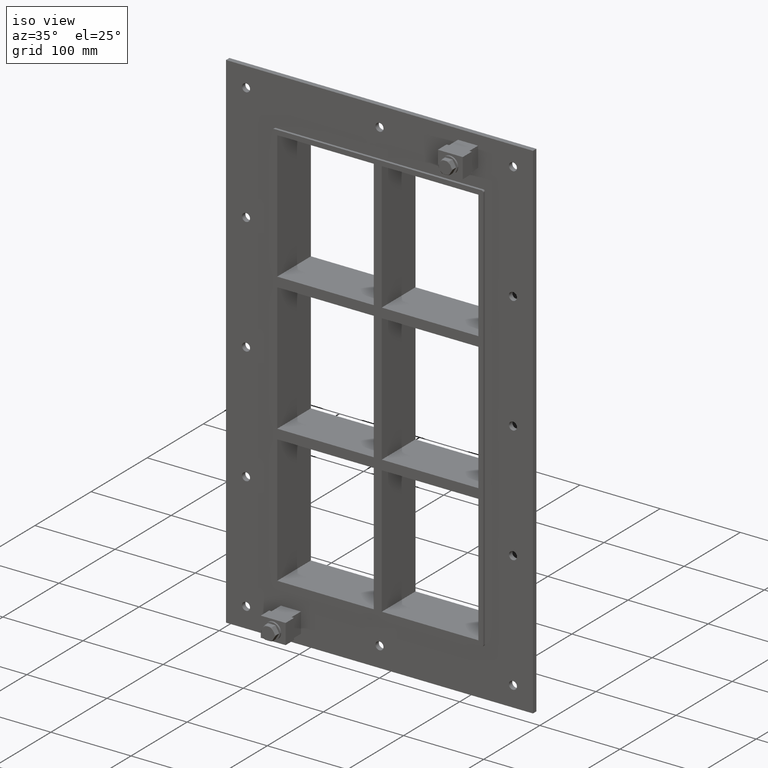
[diagram: clean part render]
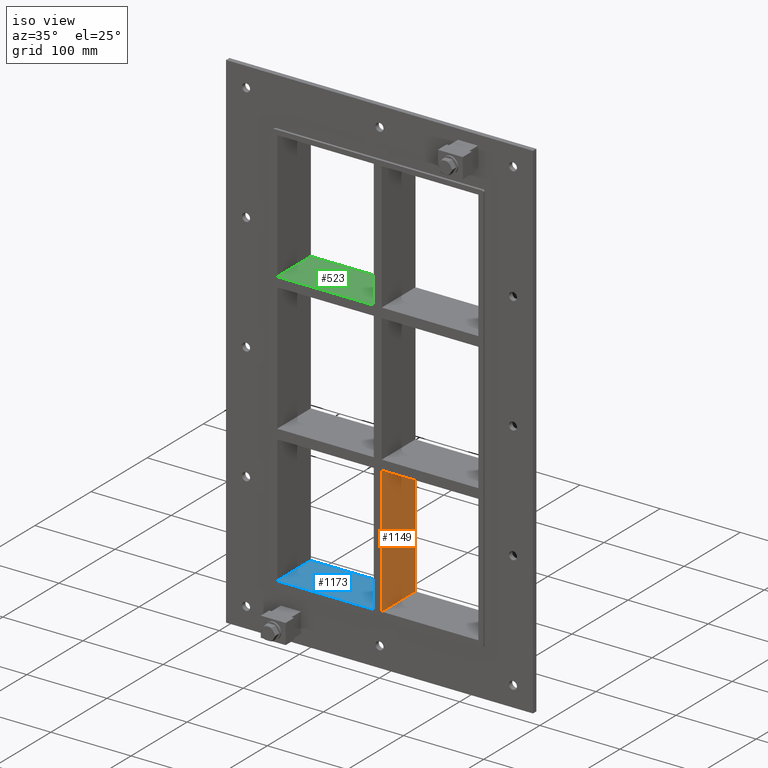
[diagram: same view with three faces highlighted in distinct colors, each labeled with its STEP entity id]
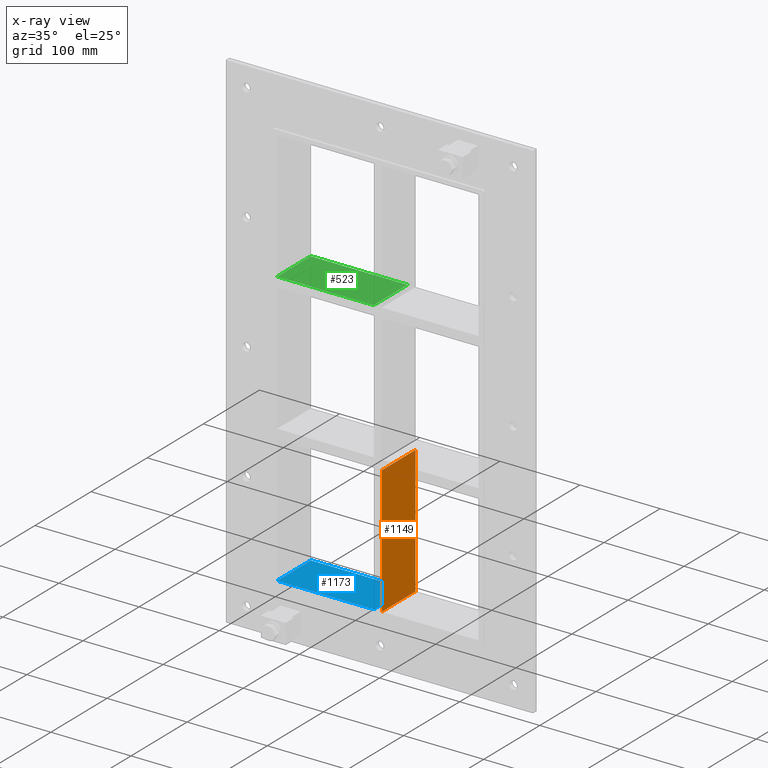
[diagram: x-ray of the same camera — body ghosted, the three highlighted faces saturated]
A machine part, iso view with three faces highlighted in distinct colors.
The next image is the same camera in x-ray (body ghosted, the three faces saturated) — at least one of them is partly hidden behind the body in this view.
Their STEP definitions:

[orange] entity #1149 — the highlighted planar face has unit normal (1, 0, 0).
#755=CARTESIAN_POINT('',(5.0,57.0,-91.750000000010914));
#756=VERTEX_POINT('',#755);
#757=CARTESIAN_POINT('',(5.0,-3.0,-91.750000000010914));
#758=VERTEX_POINT('',#757);
#759=CARTESIAN_POINT('',(5.0,57.0,-91.750000000010914));
#760=DIRECTION('',(0.0,-1.0,0.0));
#761=VECTOR('',#760,60.0);
#762=LINE('',#759,#761);
#763=EDGE_CURVE('',#756,#758,#762,.T.);
#1067=CARTESIAN_POINT('',(5.0,57.0,-251.24999999998167));
#1068=VERTEX_POINT('',#1067);
#1069=CARTESIAN_POINT('',(5.0,57.0,-91.750000000010914));
#1070=DIRECTION('',(0.0,0.0,-1.0));
#1071=VECTOR('',#1070,159.49999999997078);
#1072=LINE('',#1069,#1071);
#1073=EDGE_CURVE('',#756,#1068,#1072,.T.);
#1126=CARTESIAN_POINT('',(5.0,-3.0,251.25));
#1127=DIRECTION('',(1.0,0.0,0.0));
#1128=DIRECTION('',(0.0,0.0,-1.0));
#1129=AXIS2_PLACEMENT_3D('',#1126,#1127,#1128);
#1130=PLANE('',#1129);
#1131=ORIENTED_EDGE('',*,*,#763,.T.);
#1132=CARTESIAN_POINT('',(5.0,-3.0,-251.24999999998167));
#1133=VERTEX_POINT('',#1132);
#1134=CARTESIAN_POINT('',(5.0,-3.0,-91.750000000010914));
#1135=DIRECTION('',(0.0,0.0,-1.0));
#1136=VECTOR('',#1135,159.49999999997078);
#1137=LINE('',#1134,#1136);
#1138=EDGE_CURVE('',#758,#1133,#1137,.T.);
#1139=ORIENTED_EDGE('',*,*,#1138,.T.);
#1140=CARTESIAN_POINT('',(5.0,57.000000000000007,-251.25));
#1141=DIRECTION('',(0.0,-1.0,0.0));
#1142=VECTOR('',#1141,60.000000000000007);
#1143=LINE('',#1140,#1142);
#1144=EDGE_CURVE('',#1068,#1133,#1143,.T.);
#1145=ORIENTED_EDGE('',*,*,#1144,.F.);
#1146=ORIENTED_EDGE('',*,*,#1073,.F.);
#1147=EDGE_LOOP('',(#1131,#1139,#1145,#1146));
#1148=FACE_OUTER_BOUND('',#1147,.T.);
#1149=ADVANCED_FACE('',(#1148),#1130,.T.);

[blue] entity #1173 — the highlighted planar face has unit normal (0, 0, -1).
#1041=CARTESIAN_POINT('',(-125.5,57.0,-251.25));
#1042=VERTEX_POINT('',#1041);
#1049=CARTESIAN_POINT('',(-5.000000000000338,57.0,-251.25));
#1050=VERTEX_POINT('',#1049);
#1051=CARTESIAN_POINT('',(-125.5,57.0,-251.25));
#1052=DIRECTION('',(1.0,0.0,0.0));
#1053=VECTOR('',#1052,120.49999999999966);
#1054=LINE('',#1051,#1053);
#1055=EDGE_CURVE('',#1042,#1050,#1054,.T.);
#1109=CARTESIAN_POINT('',(-5.000000000000338,-3.0,-251.25));
#1110=VERTEX_POINT('',#1109);
#1111=CARTESIAN_POINT('',(-5.000000000000338,-3.0,-251.25));
#1112=DIRECTION('',(0.0,1.0,0.0));
#1113=VECTOR('',#1112,60.000000000000007);
#1114=LINE('',#1111,#1113);
#1115=EDGE_CURVE('',#1110,#1050,#1114,.T.);
#1150=CARTESIAN_POINT('',(125.5,0.0,-251.25));
#1151=DIRECTION('',(0.0,0.0,-1.0));
#1152=DIRECTION('',(-1.0,0.0,0.0));
#1153=AXIS2_PLACEMENT_3D('',#1150,#1151,#1152);
#1154=PLANE('',#1153);
#1155=ORIENTED_EDGE('',*,*,#1115,.T.);
#1156=ORIENTED_EDGE('',*,*,#1055,.F.);
#1157=CARTESIAN_POINT('',(-125.5,-3.0,-251.25));
#1158=VERTEX_POINT('',#1157);
#1159=CARTESIAN_POINT('',(-125.5,-3.0,-251.25));
#1160=DIRECTION('',(0.0,1.0,0.0));
#1161=VECTOR('',#1160,60.0);
#1162=LINE('',#1159,#1161);
#1163=EDGE_CURVE('',#1158,#1042,#1162,.T.);
#1164=ORIENTED_EDGE('',*,*,#1163,.F.);
#1165=CARTESIAN_POINT('',(-5.000000000000334,-3.0,-251.25));
#1166=DIRECTION('',(-1.0,0.0,0.0));
#1167=VECTOR('',#1166,120.49999999999966);
#1168=LINE('',#1165,#1167);
#1169=EDGE_CURVE('',#1110,#1158,#1168,.T.);
#1170=ORIENTED_EDGE('',*,*,#1169,.F.);
#1171=EDGE_LOOP('',(#1155,#1156,#1164,#1170));
#1172=FACE_OUTER_BOUND('',#1171,.T.);
#1173=ADVANCED_FACE('',(#1172),#1154,.F.);

[green] entity #523 — the highlighted planar face has unit normal (0, 0, 1).
#484=CARTESIAN_POINT('',(-125.49999999999875,-3.0,91.749999999999801));
#485=DIRECTION('',(0.0,0.0,1.0));
#486=DIRECTION('',(1.0,0.0,0.0));
#487=AXIS2_PLACEMENT_3D('',#484,#485,#486);
#488=PLANE('',#487);
#489=CARTESIAN_POINT('',(-5.000000000000399,57.0,91.749999999999829));
#490=VERTEX_POINT('',#489);
#491=CARTESIAN_POINT('',(-5.000000000000391,-3.0,91.749999999999801));
#492=VERTEX_POINT('',#491);
#493=CARTESIAN_POINT('',(-5.0000000000004,57.0,91.749999999999815));
#494=DIRECTION('',(0.0,-1.0,0.0));
#495=VECTOR('',#494,60.0);
#496=LINE('',#493,#495);
#497=EDGE_CURVE('',#490,#492,#496,.T.);
#498=ORIENTED_EDGE('',*,*,#497,.F.);
#499=CARTESIAN_POINT('',(-125.49999999999875,57.0,91.749999999999801));
#500=VERTEX_POINT('',#499);
#501=CARTESIAN_POINT('',(-125.49999999999875,57.0,91.749999999999801));
#502=DIRECTION('',(1.0,0.0,0.0));
#503=VECTOR('',#502,120.49999999999835);
#504=LINE('',#501,#503);
#505=EDGE_CURVE('',#500,#490,#504,.T.);
#506=ORIENTED_EDGE('',*,*,#505,.F.);
#507=CARTESIAN_POINT('',(-125.49999999999875,-3.0,91.749999999999801));
#508=VERTEX_POINT('',#507);
#509=CARTESIAN_POINT('',(-125.5,-3.0,91.749999999999815));
#510=DIRECTION('',(0.0,1.0,0.0));
#511=VECTOR('',#510,60.000000000000007);
#512=LINE('',#509,#511);
#513=EDGE_CURVE('',#508,#500,#512,.T.);
#514=ORIENTED_EDGE('',*,*,#513,.F.);
#515=CARTESIAN_POINT('',(-125.49999999999875,-3.0,91.749999999999801));
#516=DIRECTION('',(1.0,0.0,0.0));
#517=VECTOR('',#516,120.49999999999835);
#518=LINE('',#515,#517);
#519=EDGE_CURVE('',#508,#492,#518,.T.);
#520=ORIENTED_EDGE('',*,*,#519,.T.);
#521=EDGE_LOOP('',(#498,#506,#514,#520));
#522=FACE_OUTER_BOUND('',#521,.T.);
#523=ADVANCED_FACE('',(#522),#488,.T.);